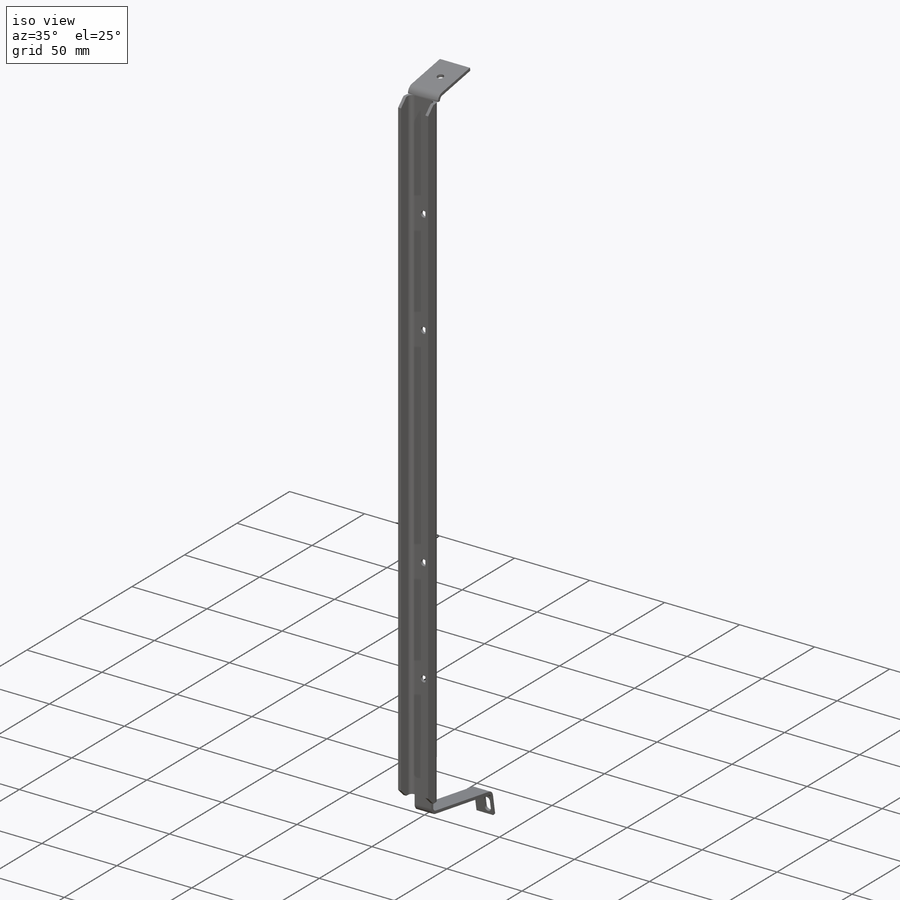
[diagram: iso view]
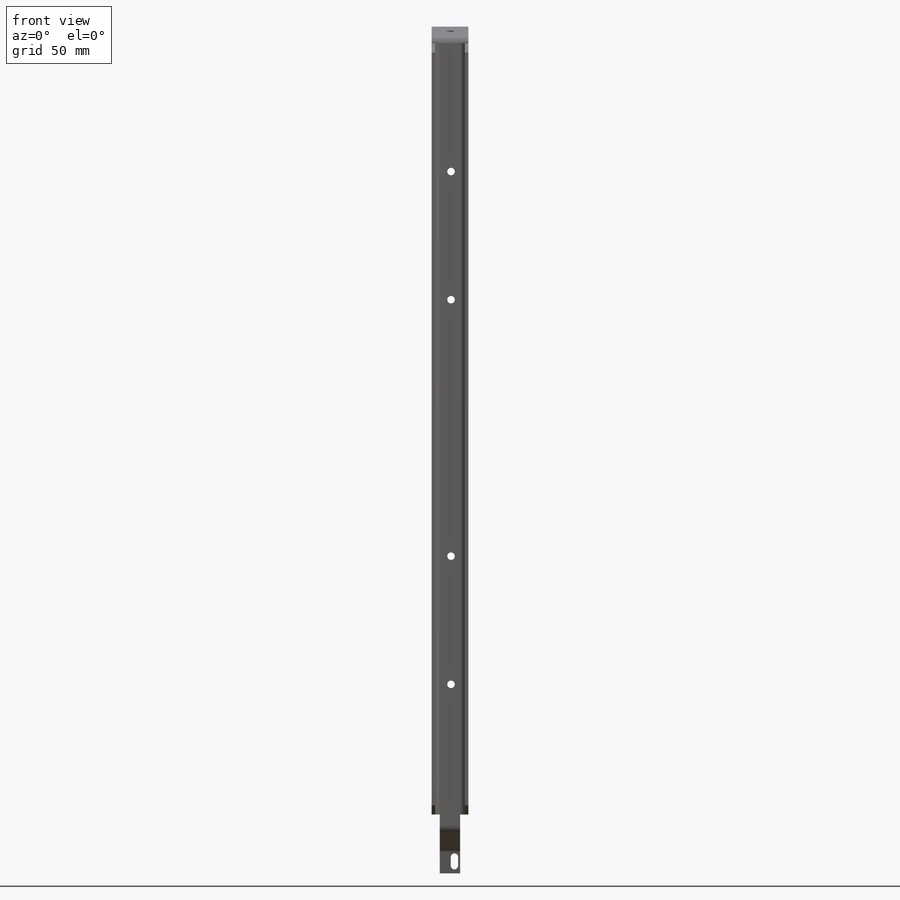
[diagram: front view]
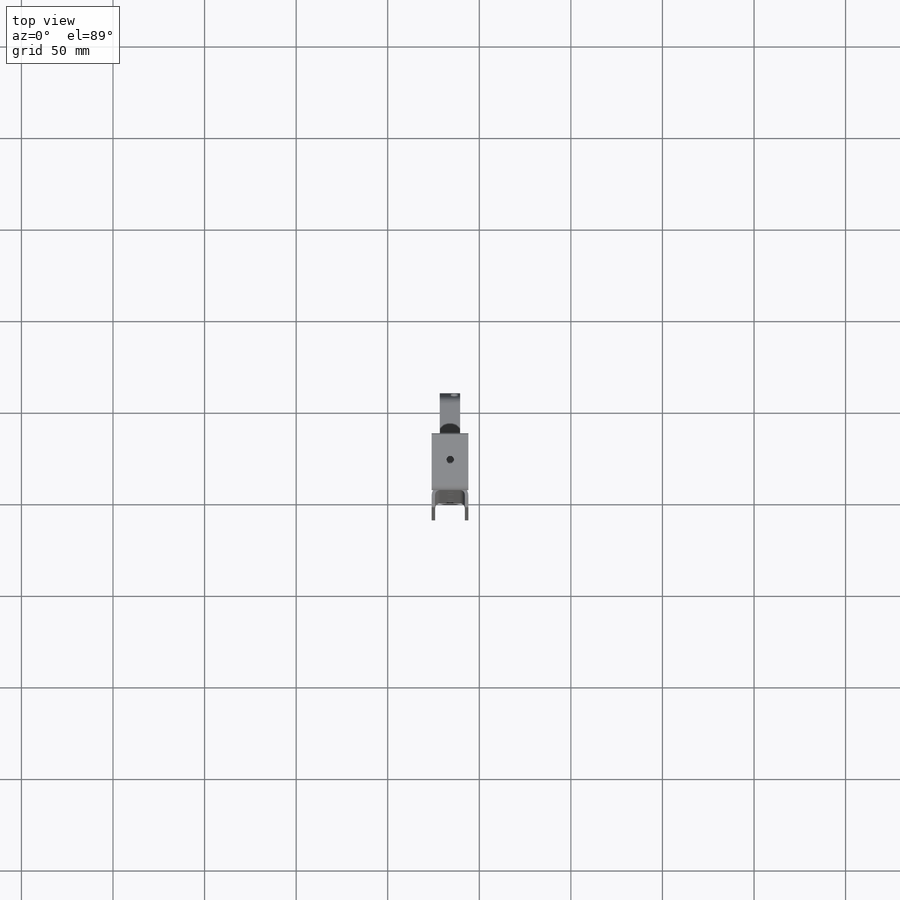
[diagram: top view]
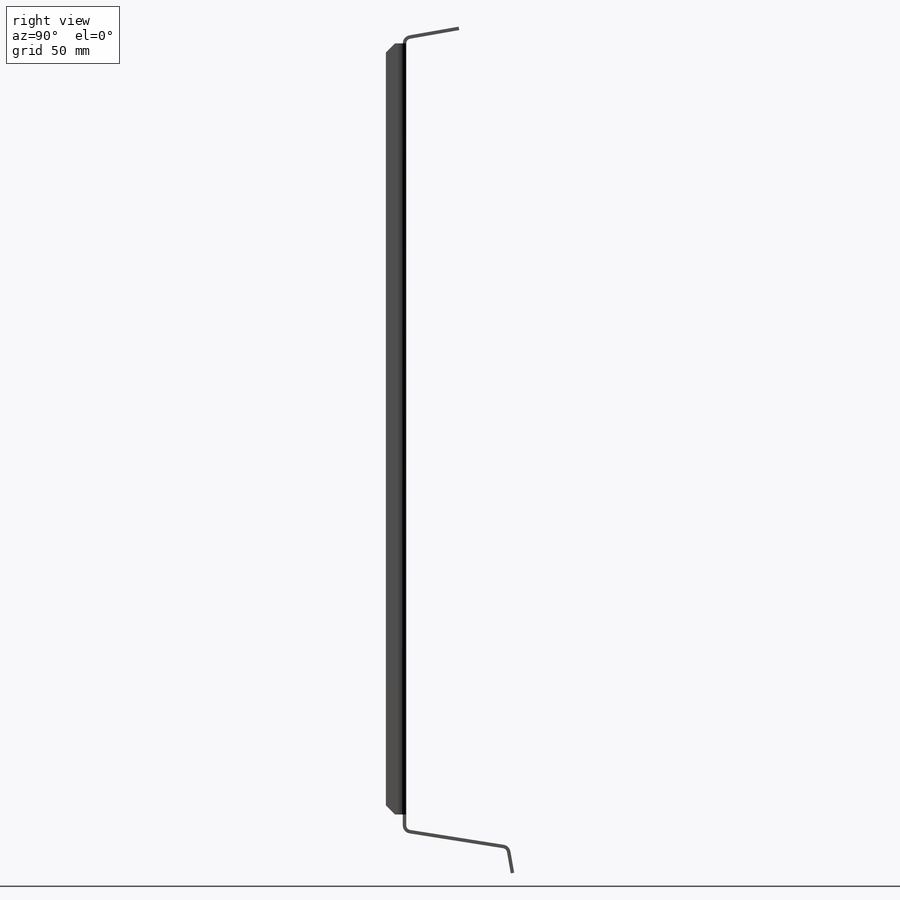
[diagram: right view]
SOLIDWORKS PART (.sldprt)
format: sldprt  version: not decoded by parser v0  size: 542,208 bytes
history: native  units: mm
features: sketch x27, sheet_metal_op x13, cut_extrude x3, material x1 + 8 further entries (+13 scaffold rows collapsed; 8 parser-record rows omitted)
feature tree (73):
  scaffold x13  (default folders/planes/origin — collapsed)
  material  "Material <not specified>"
  sketch  "Sketch1"  dims[c1.D1=20.0mm c1.D2=~425.146149mm c1.D3=~444.146149mm c2.D1=2.54mm c2.D2=0.5 c2.D3=0.0mm c2.D6=500.0mm]
  sheet_metal_op  "Base-Flange1"
  sketch  "Sketch10"  dims[c1.D1=2.54mm c1.D4=80.0deg c1.D5=1.0 c1.D8=0.37mm c1.D9=0.37mm c2.D1=1.27mm c2.D2=500.0mm c2.D3=0.0mm c2.D6=10.0mm c2.D7=30.0mm c2.Edge-Flange3=0.0]
  sketch  "Sketch18"
  sketch  "Sketch19"
  sheet_metal_op  "EdgeBend3"
  sheet_metal_op  "EdgeBend4"  Edge-Flange5=0
  sketch  "Sketch27"
  sheet_metal_op  "EdgeBend6"  Edge-Flange6=0
  sketch  "Sketch30"
  sheet_metal_op  "EdgeBend7"
  sketch  "Sketch31"  dims[D1=4.08mm]
  cut_extrude  "Cut-Extrude1"  Depth=10mm
  sketch  "Sketch32"  dims[c1.D2=2.5mm c1.D4=2.5mm c1.D1=4.05mm c2.D2=5.0mm c2.D3=8.0mm c2.D4=4.0mm]
  cut_extrude  "Cut-Extrude2"  Depth=3.21412mm
  sketch  "Sketch33"  dims[c1.D1=~6.723599mm c1.D2=~6.723599mm c1.D3=~6.723599mm c1.D4=~6.723599mm c1.D5=4.08mm c1.D6=4.08mm c2.D1=70.0mm c2.D2=70.0mm c2.D3=140.0mm c2.D4=70.0mm c2.D5=5.0mm c2.D6=5.0mm]
  cut_extrude  "Cut-Extrude3"  Depth=10mm
  sketch  "Bend-Lines1"
  sketch  "Bounding-Box1"
  sheet_metal_op  "Sheet-Metal1"
  "Flat-Pattern1"
  sketch  "Bend-Lines2"
  sketch  "Bounding-Box2"
  parser-record x8  (decoder bookkeeping rows leaked as tree rows — omitted from the tree; the rows remain in map.json)
  sheet_metal_op  "Sheet-Metal2"
  "Flat-Pattern1"
  sketch  "Bend-Lines2"
  sketch  "Bounding-Box2"
  sheet_metal_op  "Sheet-Metal4"
  "Flat-Pattern1"
  sketch  "Bend-Lines2"
  sketch  "Bounding-Box2"
  sheet_metal_op  "Sheet-Metal6"
  "Flat-Pattern1"
  sketch  "Bend-Lines2"
  sketch  "Bounding-Box2"
  sheet_metal_op  "Sheet-Metal7"
  "Flat-Pattern1"
  sketch  "Bend-Lines2"
  sketch  "Bounding-Box2"
  sheet_metal_op  "Sheet-Metal8"
  "Flat-Pattern1"
  sketch  "Bend-Lines2"
  sketch  "Bounding-Box2"
  sheet_metal_op  "Sheet-Metal9"
  "Flat-Pattern1"
  sketch  "Bend-Lines2"
  sketch  "Bounding-Box2"
  sheet_metal_op  "Sheet-Metal10"
  "Flat-Pattern1"
  sketch  "Bend-Lines2"
  sketch  "Bounding-Box2"
decode coverage: 10 of 43 modeling features carry decoded parameters; 8 rows unclassified (native names shown)
note: ~ marks probable driven/reference dimensions
note: suppression state not decoded; provenance and decode notes live in map.json
